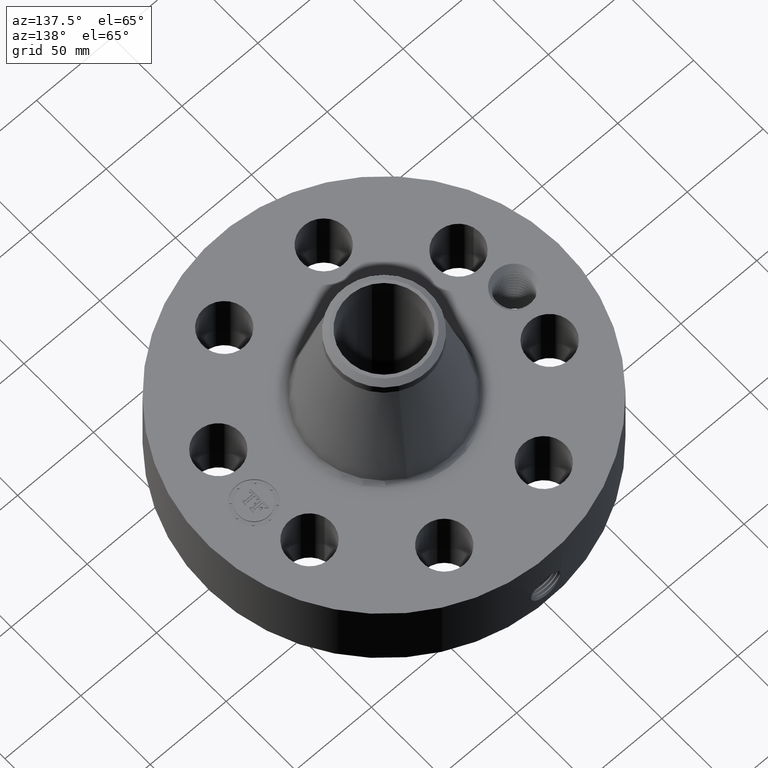
[diagram: clean part render]
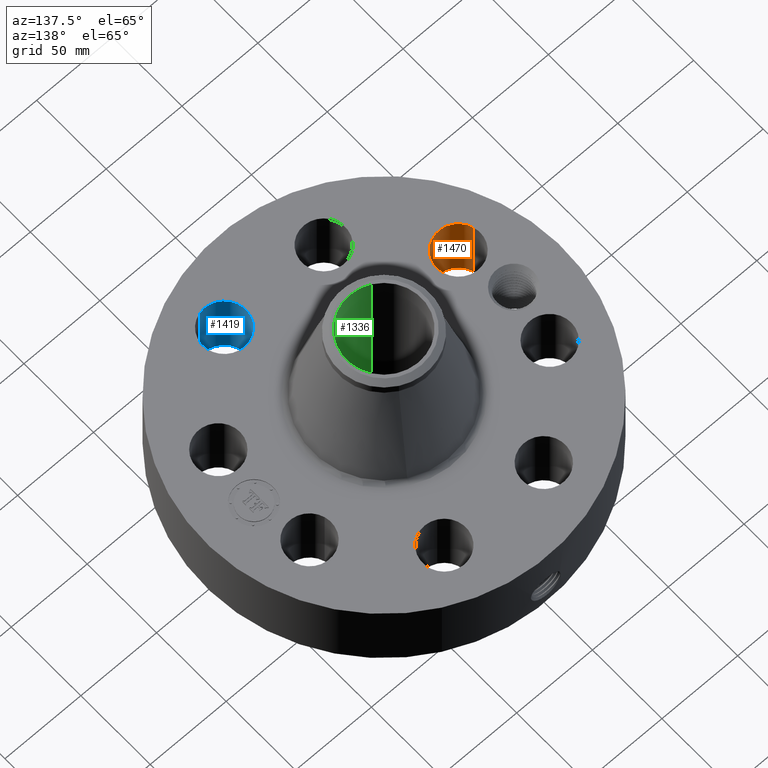
[diagram: same view with three faces highlighted in distinct colors, each labeled with its STEP entity id]
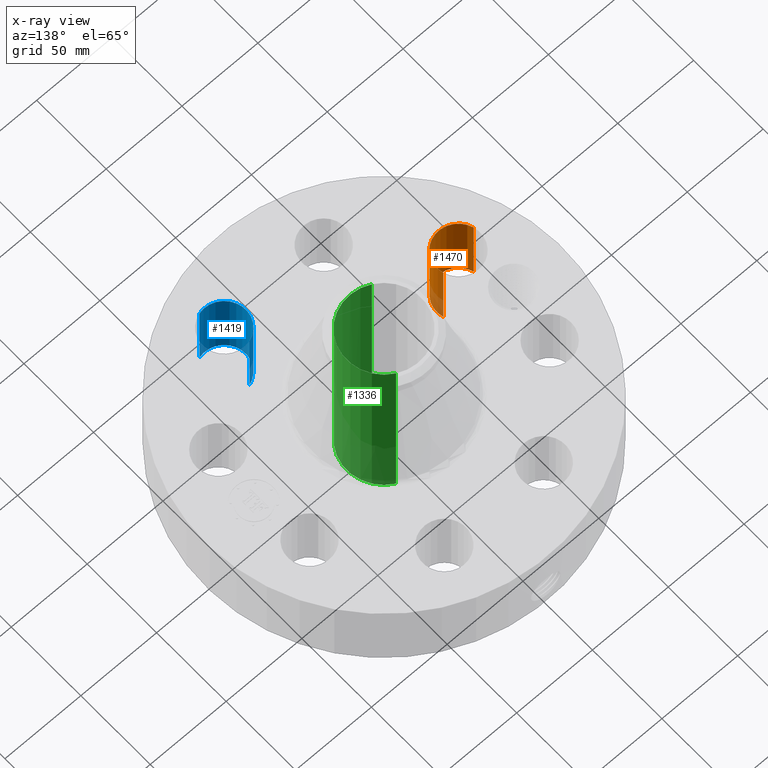
[diagram: x-ray of the same camera — body ghosted, the three highlighted faces saturated]
A machine part, auxiliary view with three faces highlighted in distinct colors.
The next image is the same camera in x-ray (body ghosted, the three faces saturated) — at least one of them is partly hidden behind the body in this view.
Their STEP definitions:

[orange] entity #1470 — the highlighted cylindrical surface (edge-blend (fillet) strip) has radius 14.224 mm, axis along (-0, 0, -1).
#310=AXIS2_PLACEMENT_3D('Circle Axis2P3D',#308,#309,$) ;
#650=AXIS2_PLACEMENT_3D('Circle Axis2P3D',#648,#649,$) ;
#1452=AXIS2_PLACEMENT_3D('Cylinder Axis2P3D',#1449,#1450,#1451) ;
#308=CARTESIAN_POINT('Axis2P3D Location',(-3.11809342224,-1.29155658424,0.250000000001)) ;
#312=CARTESIAN_POINT('Vertex',(-2.58074562944,-1.1338944468,0.250000000001)) ;
#314=CARTESIAN_POINT('Vertex',(-3.65544121503,-1.44921872168,0.250000000001)) ;
#643=CARTESIAN_POINT('Vertex',(-3.65544121503,-1.44921872168,2.25000000001)) ;
#645=CARTESIAN_POINT('Vertex',(-2.58074562944,-1.1338944468,2.25000000001)) ;
#648=CARTESIAN_POINT('Axis2P3D Location',(-3.11809342224,-1.29155658424,2.25000000001)) ;
#1449=CARTESIAN_POINT('Axis2P3D Location',(-3.11809342224,-1.29155658424,2.24606299213)) ;
#1454=CARTESIAN_POINT('Line Origine',(-2.58074562944,-1.1338944468,1.25000000001)) ;
#1459=CARTESIAN_POINT('Line Origine',(-3.65544121503,-1.44921872168,1.25000000001)) ;
#309=DIRECTION('Axis2P3D Direction',(0.,0.,-0.0393700787402)) ;
#649=DIRECTION('Axis2P3D Direction',(0.,0.,-0.0393700787402)) ;
#1450=DIRECTION('Axis2P3D Direction',(-0.,0.,-0.0393700787402)) ;
#1451=DIRECTION('Axis2P3D XDirection',(-0.0377775444876,-0.0110842335096,0.)) ;
#1455=DIRECTION('Vector Direction',(0.,0.,-0.0393700787402)) ;
#1460=DIRECTION('Vector Direction',(0.,0.,-0.0393700787402)) ;
#1456=VECTOR('Line Direction',#1455,0.0393700787402) ;
#1461=VECTOR('Line Direction',#1460,0.0393700787402) ;
#1465=ORIENTED_EDGE('',*,*,#1458,.F.) ;
#1466=ORIENTED_EDGE('',*,*,#316,.T.) ;
#1467=ORIENTED_EDGE('',*,*,#1463,.T.) ;
#1468=ORIENTED_EDGE('',*,*,#652,.F.) ;
#1470=ADVANCED_FACE('PartBody',(#1469),#1453,.F.) ;
#311=CIRCLE('generated circle',#310,0.560000000002) ;
#651=CIRCLE('generated circle',#650,0.560000000002) ;
#1453=CYLINDRICAL_SURFACE('generated cylinder',#1452,0.560000000002) ;
#316=EDGE_CURVE('',#313,#315,#311,.T.) ;
#652=EDGE_CURVE('',#646,#644,#651,.T.) ;
#1458=EDGE_CURVE('',#313,#646,#1457,.F.) ;
#1463=EDGE_CURVE('',#315,#644,#1462,.F.) ;
#1464=EDGE_LOOP('',(#1465,#1466,#1467,#1468)) ;
#1469=FACE_OUTER_BOUND('',#1464,.T.) ;
#1457=LINE('Line',#1454,#1456) ;
#1462=LINE('Line',#1459,#1461) ;
#313=VERTEX_POINT('',#312) ;
#315=VERTEX_POINT('',#314) ;
#644=VERTEX_POINT('',#643) ;
#646=VERTEX_POINT('',#645) ;

[blue] entity #1419 — the highlighted cylindrical surface (edge-blend (fillet) strip) has radius 14.224 mm, axis along (0, -0, -1).
#283=AXIS2_PLACEMENT_3D('Circle Axis2P3D',#281,#282,$) ;
#605=AXIS2_PLACEMENT_3D('Circle Axis2P3D',#603,#604,$) ;
#1394=AXIS2_PLACEMENT_3D('Cylinder Axis2P3D',#1391,#1392,#1393) ;
#276=CARTESIAN_POINT('Vertex',(1.1338944468,-2.58074562944,0.250000000001)) ;
#278=CARTESIAN_POINT('Vertex',(1.44921872168,-3.65544121503,0.250000000001)) ;
#281=CARTESIAN_POINT('Axis2P3D Location',(1.29155658424,-3.11809342224,0.250000000001)) ;
#603=CARTESIAN_POINT('Axis2P3D Location',(1.29155658424,-3.11809342224,2.25000000001)) ;
#607=CARTESIAN_POINT('Vertex',(1.44921872168,-3.65544121503,2.25000000001)) ;
#609=CARTESIAN_POINT('Vertex',(1.1338944468,-2.58074562944,2.25000000001)) ;
#1391=CARTESIAN_POINT('Axis2P3D Location',(1.29155658424,-3.11809342224,2.24606299213)) ;
#1396=CARTESIAN_POINT('Line Origine',(1.1338944468,-2.58074562944,1.25000000001)) ;
#1401=CARTESIAN_POINT('Line Origine',(1.44921872168,-3.65544121503,1.25000000001)) ;
#282=DIRECTION('Axis2P3D Direction',(0.,0.,-0.0393700787402)) ;
#604=DIRECTION('Axis2P3D Direction',(0.,0.,-0.0393700787402)) ;
#1392=DIRECTION('Axis2P3D Direction',(0.,-0.,-0.0393700787402)) ;
#1393=DIRECTION('Axis2P3D XDirection',(0.0110842335096,-0.0377775444876,0.)) ;
#1397=DIRECTION('Vector Direction',(0.,0.,-0.0393700787402)) ;
#1402=DIRECTION('Vector Direction',(0.,0.,-0.0393700787402)) ;
#1398=VECTOR('Line Direction',#1397,0.0393700787402) ;
#1403=VECTOR('Line Direction',#1402,0.0393700787402) ;
#1414=ORIENTED_EDGE('',*,*,#1405,.F.) ;
#1415=ORIENTED_EDGE('',*,*,#285,.T.) ;
#1416=ORIENTED_EDGE('',*,*,#1400,.T.) ;
#1417=ORIENTED_EDGE('',*,*,#611,.F.) ;
#1419=ADVANCED_FACE('PartBody',(#1418),#1395,.F.) ;
#284=CIRCLE('generated circle',#283,0.560000000002) ;
#606=CIRCLE('generated circle',#605,0.560000000002) ;
#1395=CYLINDRICAL_SURFACE('generated cylinder',#1394,0.560000000002) ;
#285=EDGE_CURVE('',#279,#277,#284,.T.) ;
#611=EDGE_CURVE('',#608,#610,#606,.T.) ;
#1400=EDGE_CURVE('',#277,#610,#1399,.F.) ;
#1405=EDGE_CURVE('',#279,#608,#1404,.F.) ;
#1413=EDGE_LOOP('',(#1414,#1415,#1416,#1417)) ;
#1418=FACE_OUTER_BOUND('',#1413,.T.) ;
#1399=LINE('Line',#1396,#1398) ;
#1404=LINE('Line',#1401,#1403) ;
#277=VERTEX_POINT('',#276) ;
#279=VERTEX_POINT('',#278) ;
#608=VERTEX_POINT('',#607) ;
#610=VERTEX_POINT('',#609) ;

[green] entity #1336 — the highlighted cylindrical surface (partial cylindrical patch) has radius 24.6253 mm, axis along (0, 0, -1).
#256=AXIS2_PLACEMENT_3D('Circle Axis2P3D',#254,#255,$) ;
#1267=AXIS2_PLACEMENT_3D('Cylinder Axis2P3D',#1264,#1265,#1266) ;
#1271=AXIS2_PLACEMENT_3D('Circle Axis2P3D',#1269,#1270,$) ;
#254=CARTESIAN_POINT('Axis2P3D Location',(0.,0.,0.250000000001)) ;
#258=CARTESIAN_POINT('Vertex',(0.464803059679,0.850816293756,0.250000000001)) ;
#260=CARTESIAN_POINT('Vertex',(-0.464803059679,-0.850816293756,0.250000000001)) ;
#1264=CARTESIAN_POINT('Axis2P3D Location',(0.,0.,2.75000000001)) ;
#1269=CARTESIAN_POINT('Axis2P3D Location',(0.,0.,5.25000000002)) ;
#1273=CARTESIAN_POINT('Vertex',(0.464803059679,0.850816293756,5.25000000002)) ;
#1275=CARTESIAN_POINT('Vertex',(-0.464803059679,-0.850816293756,5.25000000002)) ;
#1278=CARTESIAN_POINT('Line Origine',(0.464803059679,0.850816293756,2.75000000001)) ;
#1283=CARTESIAN_POINT('Line Origine',(-0.464803059679,-0.850816293756,2.75000000001)) ;
#1295=CARTESIAN_POINT('Control Point',(0.109697820237,-0.963273916517,0.880071807678)) ;
#1296=CARTESIAN_POINT('Control Point',(0.103061864857,-0.964029620402,0.867924772834)) ;
#1297=CARTESIAN_POINT('Control Point',(0.0947480777708,-0.96491851147,0.856702651978)) ;
#1298=CARTESIAN_POINT('Control Point',(0.0849256276296,-0.965862969001,0.846708688179)) ;
#1299=CARTESIAN_POINT('Control Point',(0.051725196353,-0.968547002284,0.82121030535)) ;
#1300=CARTESIAN_POINT('Control Point',(0.00995753965894,-0.970091754002,0.810640512364)) ;
#1301=CARTESIAN_POINT('Control Point',(-0.0192776286138,-0.969929058026,0.811702652154)) ;
#1302=CARTESIAN_POINT('Control Point',(-0.0601878898933,-0.968019045619,0.825262006475)) ;
#1303=CARTESIAN_POINT('Control Point',(-0.0914763429347,-0.965253677643,0.8531150024)) ;
#1304=CARTESIAN_POINT('Control Point',(-0.100568799408,-0.964318423797,0.863822160141)) ;
#1305=CARTESIAN_POINT('Control Point',(-0.120555389932,-0.962071807259,0.895385165322)) ;
#1306=CARTESIAN_POINT('Control Point',(-0.128084995182,-0.960988716881,0.932671166002)) ;
#1307=CARTESIAN_POINT('Control Point',(-0.127196670265,-0.961119353259,0.956727249058)) ;
#1308=CARTESIAN_POINT('Control Point',(-0.120792092728,-0.962010498617,0.979620262753)) ;
#1309=CARTESIAN_POINT('Control Point',(-0.109697820237,-0.963273916517,0.99992819233)) ;
#1310=CARTESIAN_POINT('Vertex',(0.109697820237,-0.963273916517,0.880071807678)) ;
#1312=CARTESIAN_POINT('Vertex',(-0.109697820237,-0.963273916517,0.99992819233)) ;
#1316=CARTESIAN_POINT('Control Point',(-0.109697820237,-0.963273916517,0.99992819233)) ;
#1317=CARTESIAN_POINT('Control Point',(-0.103061864856,-0.964029620402,1.01207522718)) ;
#1318=CARTESIAN_POINT('Control Point',(-0.094748077767,-0.964918511471,1.02329734803)) ;
#1319=CARTESIAN_POINT('Control Point',(-0.0849256276349,-0.965862969001,1.03329131182)) ;
#1320=CARTESIAN_POINT('Control Point',(-0.0517251963601,-0.968547002283,1.05878969465)) ;
#1321=CARTESIAN_POINT('Control Point',(-0.00995753966815,-0.970091754002,1.06935948764)) ;
#1322=CARTESIAN_POINT('Control Point',(0.0192776286224,-0.969929058026,1.06829734785)) ;
#1323=CARTESIAN_POINT('Control Point',(0.0601878898941,-0.968019045619,1.05473799353)) ;
#1324=CARTESIAN_POINT('Control Point',(0.0914763429309,-0.965253677644,1.02688499761)) ;
#1325=CARTESIAN_POINT('Control Point',(0.10056879941,-0.964318423797,1.01617783986)) ;
#1326=CARTESIAN_POINT('Control Point',(0.120555389933,-0.962071807259,0.984614834682)) ;
#1327=CARTESIAN_POINT('Control Point',(0.128084995182,-0.960988716881,0.947328834003)) ;
#1328=CARTESIAN_POINT('Control Point',(0.127196670266,-0.961119353259,0.923272750952)) ;
#1329=CARTESIAN_POINT('Control Point',(0.120792092728,-0.962010498617,0.900379737255)) ;
#1330=CARTESIAN_POINT('Control Point',(0.109697820237,-0.963273916517,0.880071807678)) ;
#255=DIRECTION('Axis2P3D Direction',(0.,0.,-0.0393700787402)) ;
#1265=DIRECTION('Axis2P3D Direction',(0.,0.,-0.0393700787402)) ;
#1266=DIRECTION('Axis2P3D XDirection',(-0.0188750212049,-0.0345504945626,0.)) ;
#1270=DIRECTION('Axis2P3D Direction',(0.,0.,-0.0393700787402)) ;
#1279=DIRECTION('Vector Direction',(0.,0.,-0.0393700787402)) ;
#1284=DIRECTION('Vector Direction',(0.,0.,-0.0393700787402)) ;
#1280=VECTOR('Line Direction',#1279,0.0393700787402) ;
#1285=VECTOR('Line Direction',#1284,0.0393700787402) ;
#1289=ORIENTED_EDGE('',*,*,#1277,.F.) ;
#1290=ORIENTED_EDGE('',*,*,#1282,.T.) ;
#1291=ORIENTED_EDGE('',*,*,#262,.T.) ;
#1292=ORIENTED_EDGE('',*,*,#1287,.F.) ;
#1333=ORIENTED_EDGE('',*,*,#1314,.F.) ;
#1334=ORIENTED_EDGE('',*,*,#1331,.F.) ;
#1335=FACE_BOUND('',#1332,.T.) ;
#1336=ADVANCED_FACE('PartBody',(#1293,#1335),#1268,.F.) ;
#1294=B_SPLINE_CURVE_WITH_KNOTS('',5,(#1295,#1296,#1297,#1298,#1299,#1300,#1301,#1302,#1303,#1304,#1305,#1306,#1307,#1308,#1309),.UNSPECIFIED.,.F.,.U.,(6,3,3,3,6),(0.,2.48970177861,7.46284114495,9.95830128499,14.1206906282),.UNSPECIFIED.) ;
#1315=B_SPLINE_CURVE_WITH_KNOTS('',5,(#1316,#1317,#1318,#1319,#1320,#1321,#1322,#1323,#1324,#1325,#1326,#1327,#1328,#1329,#1330),.UNSPECIFIED.,.F.,.U.,(6,3,3,3,6),(0.,2.48970177919,7.46284114472,9.95830128432,14.1206906278),.UNSPECIFIED.) ;
#257=CIRCLE('generated circle',#256,0.969500000004) ;
#1272=CIRCLE('generated circle',#1271,0.969500000004) ;
#1268=CYLINDRICAL_SURFACE('generated cylinder',#1267,0.969500000004) ;
#262=EDGE_CURVE('',#259,#261,#257,.T.) ;
#1277=EDGE_CURVE('',#1274,#1276,#1272,.T.) ;
#1282=EDGE_CURVE('',#1274,#259,#1281,.T.) ;
#1287=EDGE_CURVE('',#1276,#261,#1286,.T.) ;
#1314=EDGE_CURVE('',#1311,#1313,#1294,.T.) ;
#1331=EDGE_CURVE('',#1313,#1311,#1315,.T.) ;
#1288=EDGE_LOOP('',(#1289,#1290,#1291,#1292)) ;
#1332=EDGE_LOOP('',(#1333,#1334)) ;
#1293=FACE_OUTER_BOUND('',#1288,.T.) ;
#1281=LINE('Line',#1278,#1280) ;
#1286=LINE('Line',#1283,#1285) ;
#259=VERTEX_POINT('',#258) ;
#261=VERTEX_POINT('',#260) ;
#1274=VERTEX_POINT('',#1273) ;
#1276=VERTEX_POINT('',#1275) ;
#1311=VERTEX_POINT('',#1310) ;
#1313=VERTEX_POINT('',#1312) ;